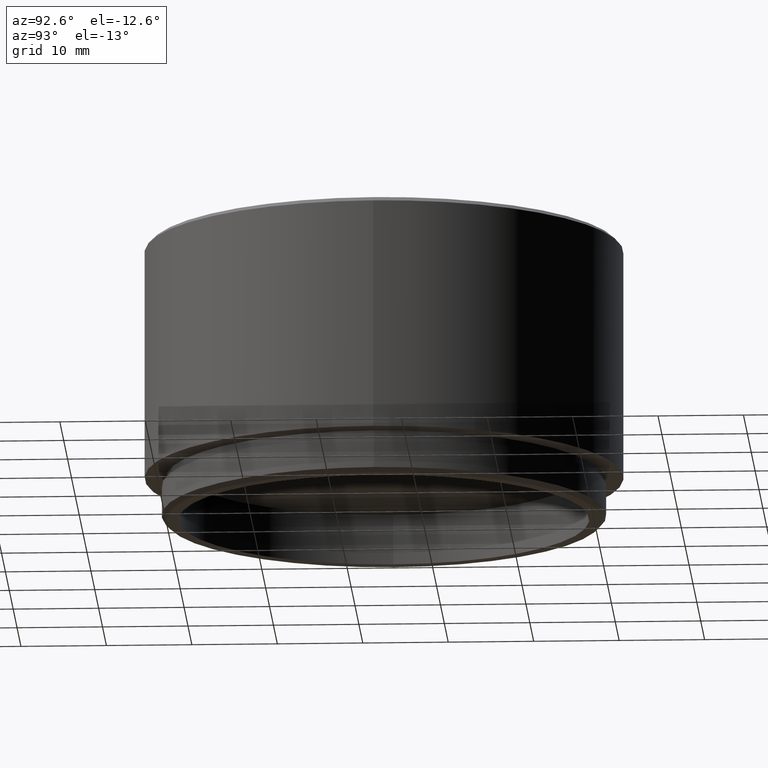
[diagram: clean part render]
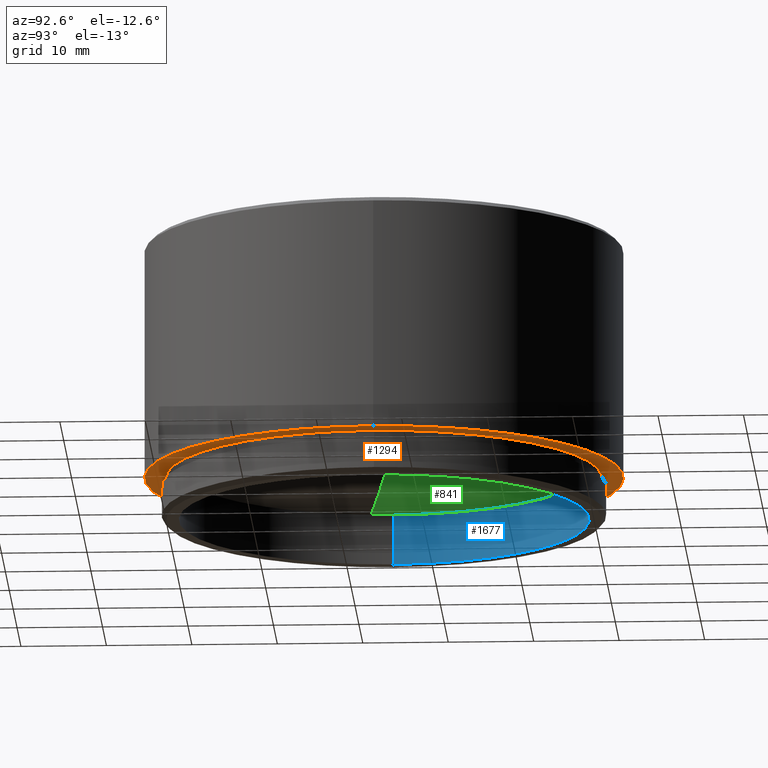
[diagram: same view with three faces highlighted in distinct colors, each labeled with its STEP entity id]
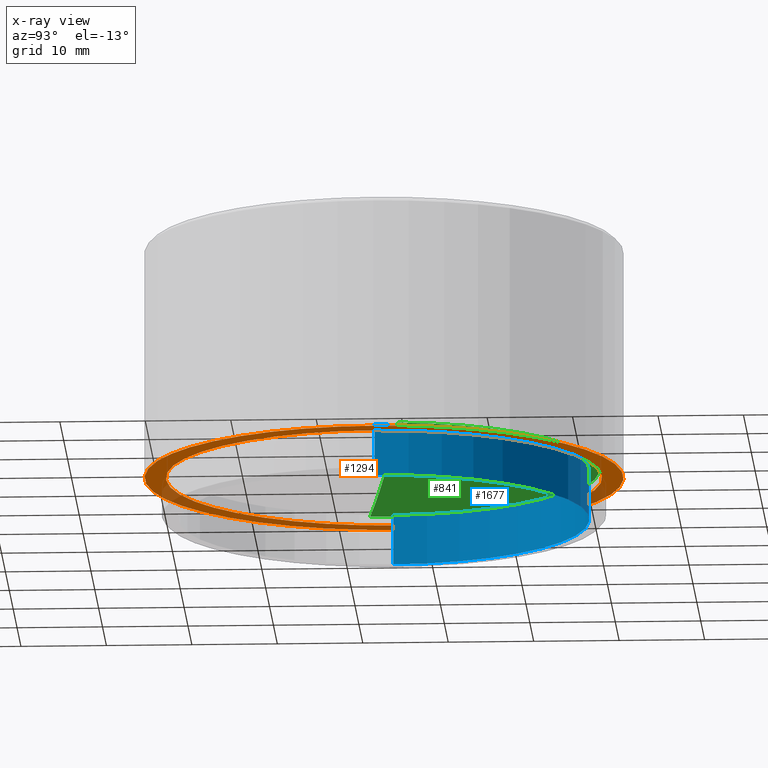
[diagram: x-ray of the same camera — body ghosted, the three highlighted faces saturated]
A machine part, auxiliary view with three faces highlighted in distinct colors.
The next image is the same camera in x-ray (body ghosted, the three faces saturated) — at least one of them is partly hidden behind the body in this view.
Their STEP definitions:

[orange] entity #1294 — the highlighted planar face has unit normal (0, 0, -1).
#47 = DIRECTION ( 'NONE',  ( -1.000000000000000000, 0.000000000000000000, 0.000000000000000000 ) ) ;
#77 = FACE_BOUND ( 'NONE', #1676, .T. ) ;
#100 = AXIS2_PLACEMENT_3D ( 'NONE', #1652, #1496, #268 ) ;
#142 = AXIS2_PLACEMENT_3D ( 'NONE', #461, #721, #363 ) ;
#190 = DIRECTION ( 'NONE',  ( 0.000000000000000000, 0.000000000000000000, -1.000000000000000000 ) ) ;
#196 = ORIENTED_EDGE ( 'NONE', *, *, #1236, .T. ) ;
#197 = VERTEX_POINT ( 'NONE', #275 ) ;
#243 = AXIS2_PLACEMENT_3D ( 'NONE', #691, #1257, #957 ) ;
#263 = ORIENTED_EDGE ( 'NONE', *, *, #1697, .T. ) ;
#268 = DIRECTION ( 'NONE',  ( -1.000000000000000000, 0.000000000000000000, 0.000000000000000000 ) ) ;
#275 = CARTESIAN_POINT ( 'NONE',  ( -25.50000000000000000, 3.122849337825750222E-15, 5.000000000000000000 ) ) ;
#357 = ORIENTED_EDGE ( 'NONE', *, *, #795, .F. ) ;
#363 = DIRECTION ( 'NONE',  ( -1.000000000000000000, 0.000000000000000000, 0.000000000000000000 ) ) ;
#452 = VERTEX_POINT ( 'NONE', #1315 ) ;
#458 = ORIENTED_EDGE ( 'NONE', *, *, #1691, .F. ) ;
#461 = CARTESIAN_POINT ( 'NONE',  ( 0.000000000000000000, 0.000000000000000000, 5.000000000000000000 ) ) ;
#589 = CIRCLE ( 'NONE', #142, 25.50000000000000000 ) ;
#619 = DIRECTION ( 'NONE',  ( -1.000000000000000000, 0.000000000000000000, -0.000000000000000000 ) ) ;
#686 = CIRCLE ( 'NONE', #1669, 28.00000000000000000 ) ;
#691 = CARTESIAN_POINT ( 'NONE',  ( 0.000000000000000000, 0.000000000000000000, 5.000000000000000000 ) ) ;
#711 = CARTESIAN_POINT ( 'NONE',  ( 0.000000000000000000, 0.000000000000000000, 5.000000000000000000 ) ) ;
#721 = DIRECTION ( 'NONE',  ( 0.000000000000000000, 0.000000000000000000, -1.000000000000000000 ) ) ;
#725 = FACE_OUTER_BOUND ( 'NONE', #1290, .T. ) ;
#746 = PLANE ( 'NONE',  #1392 ) ;
#795 = EDGE_CURVE ( 'NONE', #452, #197, #1136, .T. ) ;
#957 = DIRECTION ( 'NONE',  ( -1.000000000000000000, 0.000000000000000000, 0.000000000000000000 ) ) ;
#989 = VERTEX_POINT ( 'NONE', #1397 ) ;
#1054 = CIRCLE ( 'NONE', #243, 28.00000000000000000 ) ;
#1136 = CIRCLE ( 'NONE', #100, 25.50000000000000000 ) ;
#1236 = EDGE_CURVE ( 'NONE', #1457, #989, #1054, .T. ) ;
#1257 = DIRECTION ( 'NONE',  ( 0.000000000000000000, 0.000000000000000000, -1.000000000000000000 ) ) ;
#1286 = DIRECTION ( 'NONE',  ( 0.000000000000000000, 0.000000000000000000, -1.000000000000000000 ) ) ;
#1290 = EDGE_LOOP ( 'NONE', ( #263, #196 ) ) ;
#1294 = ADVANCED_FACE ( 'NONE', ( #725, #77 ), #746, .T. ) ;
#1315 = CARTESIAN_POINT ( 'NONE',  ( 25.50000000000000000, 0.000000000000000000, 5.000000000000000000 ) ) ;
#1327 = CARTESIAN_POINT ( 'NONE',  ( 28.00000000000000000, 3.429011037612589276E-15, 5.000000000000000000 ) ) ;
#1392 = AXIS2_PLACEMENT_3D ( 'NONE', #1412, #1286, #619 ) ;
#1397 = CARTESIAN_POINT ( 'NONE',  ( -28.00000000000000000, 0.000000000000000000, 5.000000000000000000 ) ) ;
#1412 = CARTESIAN_POINT ( 'NONE',  ( 0.000000000000000000, 0.000000000000000000, 5.000000000000000000 ) ) ;
#1457 = VERTEX_POINT ( 'NONE', #1327 ) ;
#1496 = DIRECTION ( 'NONE',  ( 0.000000000000000000, 0.000000000000000000, -1.000000000000000000 ) ) ;
#1652 = CARTESIAN_POINT ( 'NONE',  ( 0.000000000000000000, 0.000000000000000000, 5.000000000000000000 ) ) ;
#1669 = AXIS2_PLACEMENT_3D ( 'NONE', #711, #190, #47 ) ;
#1676 = EDGE_LOOP ( 'NONE', ( #357, #458 ) ) ;
#1691 = EDGE_CURVE ( 'NONE', #197, #452, #589, .T. ) ;
#1697 = EDGE_CURVE ( 'NONE', #989, #1457, #686, .T. ) ;

[blue] entity #1677 — the highlighted cylindrical surface (partial cylindrical patch) has radius 24 mm, axis along (-0, -0, -1).
#41 = EDGE_CURVE ( 'NONE', #315, #1233, #92, .T. ) ;
#82 = CARTESIAN_POINT ( 'NONE',  ( 0.000000000000000000, 0.000000000000000000, 6.000000000000001776 ) ) ;
#92 = LINE ( 'NONE', #1718, #1050 ) ;
#104 = DIRECTION ( 'NONE',  ( -0.000000000000000000, -0.000000000000000000, -1.000000000000000000 ) ) ;
#105 = CIRCLE ( 'NONE', #322, 24.00000000000000355 ) ;
#107 = ORIENTED_EDGE ( 'NONE', *, *, #41, .F. ) ;
#180 = DIRECTION ( 'NONE',  ( 0.000000000000000000, 0.000000000000000000, 1.000000000000000000 ) ) ;
#186 = CARTESIAN_POINT ( 'NONE',  ( 24.00000000000000355, 2.939152317953648289E-15, 0.000000000000000000 ) ) ;
#187 = CIRCLE ( 'NONE', #1170, 24.00000000000000355 ) ;
#245 = VECTOR ( 'NONE', #1269, 1000.000000000000000 ) ;
#287 = CARTESIAN_POINT ( 'NONE',  ( 24.00000000000000355, 2.939152317953648289E-15, 6.000000000000001776 ) ) ;
#315 = VERTEX_POINT ( 'NONE', #287 ) ;
#322 = AXIS2_PLACEMENT_3D ( 'NONE', #1395, #180, #474 ) ;
#474 = DIRECTION ( 'NONE',  ( 1.000000000000000000, 0.000000000000000000, 0.000000000000000000 ) ) ;
#494 = DIRECTION ( 'NONE',  ( 0.000000000000000000, 0.000000000000000000, 1.000000000000000000 ) ) ;
#602 = CARTESIAN_POINT ( 'NONE',  ( -24.00000000000000355, 0.000000000000000000, 32.50000000000000000 ) ) ;
#614 = LINE ( 'NONE', #602, #245 ) ;
#624 = DIRECTION ( 'NONE',  ( 1.000000000000000000, 0.000000000000000000, 0.000000000000000000 ) ) ;
#657 = AXIS2_PLACEMENT_3D ( 'NONE', #1559, #1567, #1291 ) ;
#752 = FACE_OUTER_BOUND ( 'NONE', #1167, .T. ) ;
#905 = VERTEX_POINT ( 'NONE', #1119 ) ;
#1050 = VECTOR ( 'NONE', #104, 1000.000000000000000 ) ;
#1119 = CARTESIAN_POINT ( 'NONE',  ( -24.00000000000000355, 0.000000000000000000, 6.000000000000001776 ) ) ;
#1135 = CYLINDRICAL_SURFACE ( 'NONE', #657, 24.00000000000000355 ) ;
#1162 = VERTEX_POINT ( 'NONE', #1365 ) ;
#1167 = EDGE_LOOP ( 'NONE', ( #107, #1415, #1425, #1305 ) ) ;
#1170 = AXIS2_PLACEMENT_3D ( 'NONE', #82, #494, #624 ) ;
#1233 = VERTEX_POINT ( 'NONE', #186 ) ;
#1269 = DIRECTION ( 'NONE',  ( -0.000000000000000000, -0.000000000000000000, -1.000000000000000000 ) ) ;
#1291 = DIRECTION ( 'NONE',  ( -1.000000000000000000, 0.000000000000000000, 0.000000000000000000 ) ) ;
#1305 = ORIENTED_EDGE ( 'NONE', *, *, #1660, .F. ) ;
#1365 = CARTESIAN_POINT ( 'NONE',  ( -24.00000000000000355, 0.000000000000000000, 0.000000000000000000 ) ) ;
#1395 = CARTESIAN_POINT ( 'NONE',  ( 0.000000000000000000, 0.000000000000000000, 0.000000000000000000 ) ) ;
#1415 = ORIENTED_EDGE ( 'NONE', *, *, #1587, .T. ) ;
#1425 = ORIENTED_EDGE ( 'NONE', *, *, #1616, .T. ) ;
#1559 = CARTESIAN_POINT ( 'NONE',  ( 0.000000000000000000, 0.000000000000000000, 32.50000000000000000 ) ) ;
#1567 = DIRECTION ( 'NONE',  ( -0.000000000000000000, -0.000000000000000000, -1.000000000000000000 ) ) ;
#1587 = EDGE_CURVE ( 'NONE', #315, #905, #187, .T. ) ;
#1616 = EDGE_CURVE ( 'NONE', #905, #1162, #614, .T. ) ;
#1660 = EDGE_CURVE ( 'NONE', #1233, #1162, #105, .T. ) ;
#1677 = ADVANCED_FACE ( 'NONE', ( #752 ), #1135, .F. ) ;
#1718 = CARTESIAN_POINT ( 'NONE',  ( 24.00000000000000355, 2.939152317953648289E-15, 32.50000000000000000 ) ) ;

[green] entity #841 — the highlighted toroidal blend (fillet) surface has major radius 0.2668 mm and minor (blend) radius 363.1 mm.
#1 = DIRECTION ( 'NONE',  ( 1.224646799147351975E-16, 1.000000000000000000, -1.499759782661857882E-32 ) ) ;
#106 = DIRECTION ( 'NONE',  ( -1.375998299056221984E-16, 0.000000000000000000, -1.000000000000000000 ) ) ;
#123 = ORIENTED_EDGE ( 'NONE', *, *, #1443, .T. ) ;
#131 = CARTESIAN_POINT ( 'NONE',  ( 0.2668334670156080057, -3.267767512860010604E-17, 343.0999019552344862 ) ) ;
#236 = AXIS2_PLACEMENT_3D ( 'NONE', #284, #1096, #1513 ) ;
#240 = TOROIDAL_SURFACE ( 'NONE', #236, -0.2668334670155639854, 363.0999999999999659 ) ;
#284 = CARTESIAN_POINT ( 'NONE',  ( 4.396439809428719849E-14, 0.000000000000000000, 343.0999019552344862 ) ) ;
#350 = CARTESIAN_POINT ( 'NONE',  ( 25.21403517964565211, 0.000000000000000000, -19.10492315482884962 ) ) ;
#393 = CARTESIAN_POINT ( 'NONE',  ( -3.928998763814970062E-16, 0.000000000000000000, -19.10492315482884962 ) ) ;
#554 = CIRCLE ( 'NONE', #868, 363.0999999999999659 ) ;
#623 = ORIENTED_EDGE ( 'NONE', *, *, #1529, .T. ) ;
#637 = CARTESIAN_POINT ( 'NONE',  ( -7.979727989493308848E-14, 0.000000000000000000, -20.00000000000000000 ) ) ;
#841 = ADVANCED_FACE ( 'NONE', ( #1237 ), #240, .T. ) ;
#868 = AXIS2_PLACEMENT_3D ( 'NONE', #1694, #880, #1014 ) ;
#880 = DIRECTION ( 'NONE',  ( 0.000000000000000000, -1.000000000000000000, 0.000000000000000000 ) ) ;
#919 = DIRECTION ( 'NONE',  ( 1.000000000000000000, 0.000000000000000000, -1.375998299056221244E-16 ) ) ;
#943 = AXIS2_PLACEMENT_3D ( 'NONE', #131, #1, #1617 ) ;
#1013 = VERTEX_POINT ( 'NONE', #1675 ) ;
#1014 = DIRECTION ( 'NONE',  ( 0.000000000000000000, 0.000000000000000000, -1.000000000000000000 ) ) ;
#1096 = DIRECTION ( 'NONE',  ( 1.224646799147351975E-16, 0.000000000000000000, 1.000000000000000000 ) ) ;
#1130 = ORIENTED_EDGE ( 'NONE', *, *, #1662, .F. ) ;
#1134 = EDGE_LOOP ( 'NONE', ( #1130, #623, #123 ) ) ;
#1226 = CIRCLE ( 'NONE', #943, 363.0999999999999659 ) ;
#1237 = FACE_OUTER_BOUND ( 'NONE', #1134, .T. ) ;
#1251 = AXIS2_PLACEMENT_3D ( 'NONE', #393, #106, #919 ) ;
#1322 = VERTEX_POINT ( 'NONE', #637 ) ;
#1443 = EDGE_CURVE ( 'NONE', #1013, #1668, #1716, .T. ) ;
#1513 = DIRECTION ( 'NONE',  ( -1.000000000000000000, 0.000000000000000000, 1.224646799147351975E-16 ) ) ;
#1529 = EDGE_CURVE ( 'NONE', #1322, #1013, #1226, .T. ) ;
#1617 = DIRECTION ( 'NONE',  ( -1.000000000000000000, 1.224646799147351975E-16, 0.000000000000000000 ) ) ;
#1662 = EDGE_CURVE ( 'NONE', #1322, #1668, #554, .T. ) ;
#1668 = VERTEX_POINT ( 'NONE', #350 ) ;
#1675 = CARTESIAN_POINT ( 'NONE',  ( -25.21403517964565211, 3.099215808734225212E-15, -19.10492315482884962 ) ) ;
#1694 = CARTESIAN_POINT ( 'NONE',  ( -0.2668334670155199650, 0.000000000000000000, 343.0999019552344862 ) ) ;
#1716 = CIRCLE ( 'NONE', #1251, 25.21403517964565211 ) ;